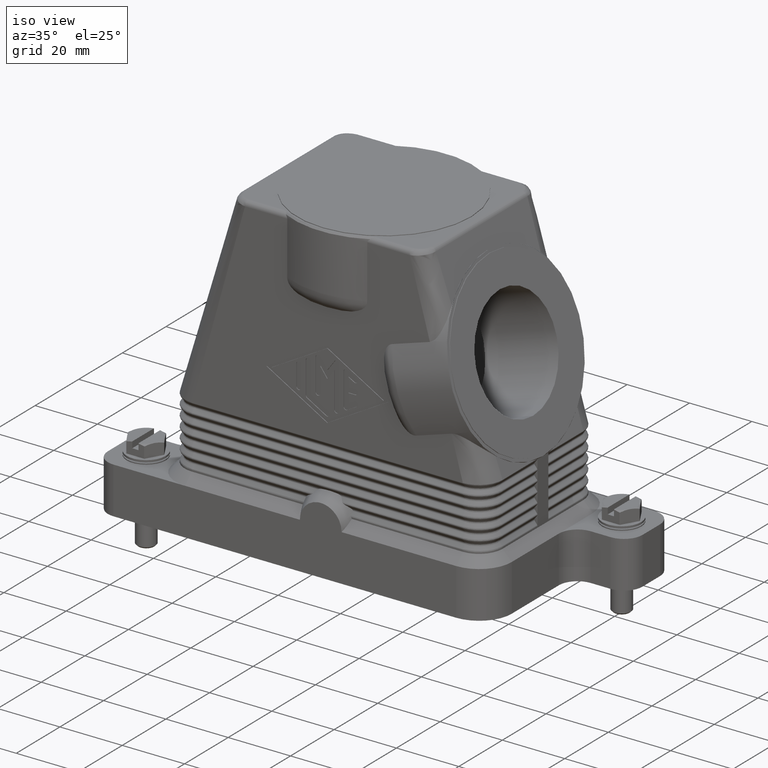
[diagram: clean part render]
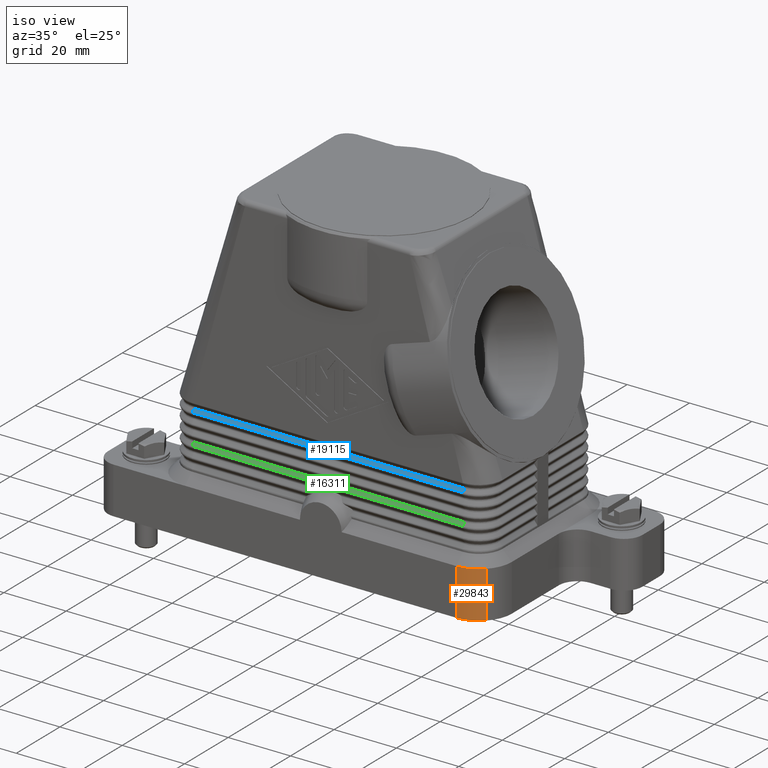
[diagram: same view with three faces highlighted in distinct colors, each labeled with its STEP entity id]
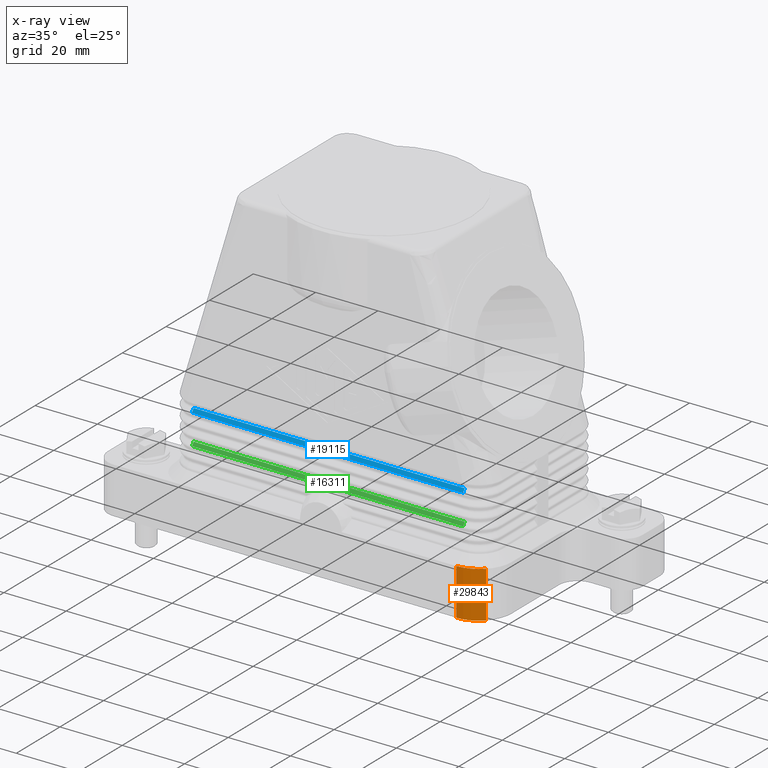
[diagram: x-ray of the same camera — body ghosted, the three highlighted faces saturated]
A machine part, iso view with three faces highlighted in distinct colors.
The next image is the same camera in x-ray (body ghosted, the three faces saturated) — at least one of them is partly hidden behind the body in this view.
Their STEP definitions:

[orange] entity #29843 — the highlighted cylindrical surface (partial cylindrical patch) has radius 10.5 mm, axis along (0, 0, 1).
#3941=CARTESIAN_POINT('',(50.924621202458752,-25.924621202458752,0.0));
#3942=VERTEX_POINT('',#3941);
#3943=CARTESIAN_POINT('',(50.924621202458752,-25.924621202458752,15.0));
#3944=VERTEX_POINT('',#3943);
#3945=CARTESIAN_POINT('',(50.924621202458752,-25.924621202458752,0.0));
#3946=DIRECTION('',(0.0,0.0,1.0));
#3947=VECTOR('',#3946,15.0);
#3948=LINE('',#3945,#3947);
#3949=EDGE_CURVE('',#3942,#3944,#3948,.T.);
#12666=CARTESIAN_POINT('',(43.500000000000000,-29.000000000000004,15.0));
#12667=VERTEX_POINT('',#12666);
#12690=CARTESIAN_POINT('',(43.500000000000000,-29.000000000000004,0.0));
#12691=VERTEX_POINT('',#12690);
#12698=CARTESIAN_POINT('',(43.500000000000000,-29.000000000000004,15.0));
#12699=DIRECTION('',(0.0,0.0,-1.0));
#12700=VECTOR('',#12699,15.0);
#12701=LINE('',#12698,#12700);
#12702=EDGE_CURVE('',#12667,#12691,#12701,.T.);
#29225=CARTESIAN_POINT('',(43.500000000000000,-18.500000000000004,15.0));
#29226=DIRECTION('',(0.0,0.0,-1.000000000000000));
#29227=DIRECTION('',(0.707106781186548,-0.707106781186547,0.0));
#29228=AXIS2_PLACEMENT_3D('',#29225,#29226,#29227);
#29229=CIRCLE('',#29228,10.500000000000000);
#29230=EDGE_CURVE('',#3944,#12667,#29229,.T.);
#29826=CARTESIAN_POINT('',(43.500000000000000,-18.500000000000004,0.0));
#29827=DIRECTION('',(0.0,0.0,1.0));
#29828=DIRECTION('',(0.707106781186548,-0.707106781186547,0.0));
#29829=AXIS2_PLACEMENT_3D('',#29826,#29827,#29828);
#29830=CYLINDRICAL_SURFACE('',#29829,10.500000000000002);
#29831=ORIENTED_EDGE('',*,*,#3949,.T.);
#29832=ORIENTED_EDGE('',*,*,#29230,.T.);
#29833=ORIENTED_EDGE('',*,*,#12702,.T.);
#29834=CARTESIAN_POINT('',(43.500000000000000,-18.500000000000004,0.0));
#29835=DIRECTION('',(0.0,0.0,1.000000000000000));
#29836=DIRECTION('',(0.707106781186548,-0.707106781186547,0.0));
#29837=AXIS2_PLACEMENT_3D('',#29834,#29835,#29836);
#29838=CIRCLE('',#29837,10.500000000000000);
#29839=EDGE_CURVE('',#12691,#3942,#29838,.T.);
#29840=ORIENTED_EDGE('',*,*,#29839,.T.);
#29841=EDGE_LOOP('',(#29831,#29832,#29833,#29840));
#29842=FACE_OUTER_BOUND('',#29841,.T.);
#29843=ADVANCED_FACE('',(#29842),#29830,.T.);

[blue] entity #19115 — the highlighted face is a freeform B-spline surface patch.
#6472=CARTESIAN_POINT('',(43.500000000000000,-25.894113490998450,35.057692307692307));
#6473=VERTEX_POINT('',#6472);
#6481=CARTESIAN_POINT('',(-43.500000000000000,-25.894113490998443,35.057692307692307));
#6482=VERTEX_POINT('',#6481);
#6483=CARTESIAN_POINT('',(43.500000000000000,-25.894113490998450,35.057692307692307));
#6484=DIRECTION('',(-1.0,0.0,0.0));
#6485=VECTOR('',#6484,87.0);
#6486=LINE('',#6483,#6485);
#6487=EDGE_CURVE('',#6473,#6482,#6486,.T.);
#19035=CARTESIAN_POINT('',(-43.500000000000000,-25.105886509001554,36.067307692307693));
#19036=VERTEX_POINT('',#19035);
#19082=CARTESIAN_POINT('',(-43.500000000000000,-25.105886509001554,36.067307692307693));
#19083=DIRECTION('',(0.0,-0.615384615384613,-0.788226981996894));
#19084=VECTOR('',#19083,1.280868845744950);
#19085=LINE('',#19082,#19084);
#19086=EDGE_CURVE('',#19036,#6482,#19085,.T.);
#19092=CARTESIAN_POINT('',(43.500000000000000,-25.894113490998453,35.057692307692307));
#19093=CARTESIAN_POINT('',(-43.500000000000000,-25.894113490998453,35.057692307692292));
#19094=CARTESIAN_POINT('',(43.500000000000000,-25.105886509001554,36.067307692307708));
#19095=CARTESIAN_POINT('',(-43.500000000000000,-25.105886509001554,36.067307692307693));
#19096=B_SPLINE_SURFACE_WITH_KNOTS('',1,1,((#19092,#19094),(#19093,#19095)),.UNSPECIFIED.,.F.,.F.,.U.,(2,2),(2,2),(0.0,87.0),(0.0,1.280868845744967),.UNSPECIFIED.);
#19097=ORIENTED_EDGE('',*,*,#19086,.T.);
#19098=ORIENTED_EDGE('',*,*,#6487,.F.);
#19099=CARTESIAN_POINT('',(43.500000000000000,-25.105886509001564,36.067307692307693));
#19100=VERTEX_POINT('',#19099);
#19101=CARTESIAN_POINT('',(43.500000000000000,-25.105886509001564,36.067307692307693));
#19102=DIRECTION('',(0.0,-0.615384615384611,-0.788226981996895));
#19103=VECTOR('',#19102,1.280868845744947);
#19104=LINE('',#19101,#19103);
#19105=EDGE_CURVE('',#19100,#6473,#19104,.T.);
#19106=ORIENTED_EDGE('',*,*,#19105,.F.);
#19107=CARTESIAN_POINT('',(43.500000000000000,-25.105886509001564,36.067307692307693));
#19108=DIRECTION('',(-1.0,0.0,0.0));
#19109=VECTOR('',#19108,87.0);
#19110=LINE('',#19107,#19109);
#19111=EDGE_CURVE('',#19100,#19036,#19110,.T.);
#19112=ORIENTED_EDGE('',*,*,#19111,.T.);
#19113=EDGE_LOOP('',(#19097,#19098,#19106,#19112));
#19114=FACE_OUTER_BOUND('',#19113,.T.);
#19115=ADVANCED_FACE('',(#19114),#19096,.F.);

[green] entity #16311 — the highlighted face is a freeform B-spline surface patch.
#7015=CARTESIAN_POINT('',(43.500000000000000,-25.894113490998450,25.307692307692303));
#7016=VERTEX_POINT('',#7015);
#7024=CARTESIAN_POINT('',(-43.500000000000000,-25.894113490998443,25.307692307692303));
#7025=VERTEX_POINT('',#7024);
#7026=CARTESIAN_POINT('',(43.500000000000000,-25.894113490998450,25.307692307692303));
#7027=DIRECTION('',(-1.0,0.0,0.0));
#7028=VECTOR('',#7027,87.0);
#7029=LINE('',#7026,#7028);
#7030=EDGE_CURVE('',#7016,#7025,#7029,.T.);
#16231=CARTESIAN_POINT('',(-43.500000000000000,-25.105886509001554,26.317307692307690));
#16232=VERTEX_POINT('',#16231);
#16278=CARTESIAN_POINT('',(-43.500000000000000,-25.105886509001554,26.317307692307690));
#16279=DIRECTION('',(0.0,-0.615384615384613,-0.788226981996894));
#16280=VECTOR('',#16279,1.280868845744950);
#16281=LINE('',#16278,#16280);
#16282=EDGE_CURVE('',#16232,#7025,#16281,.T.);
#16288=CARTESIAN_POINT('',(43.500000000000000,-25.894113490998453,25.307692307692303));
#16289=CARTESIAN_POINT('',(-43.500000000000000,-25.894113490998453,25.307692307692292));
#16290=CARTESIAN_POINT('',(43.500000000000000,-25.105886509001554,26.317307692307704));
#16291=CARTESIAN_POINT('',(-43.500000000000000,-25.105886509001554,26.317307692307697));
#16292=B_SPLINE_SURFACE_WITH_KNOTS('',1,1,((#16288,#16290),(#16289,#16291)),.UNSPECIFIED.,.F.,.F.,.U.,(2,2),(2,2),(0.0,87.0),(0.0,1.280868845744967),.UNSPECIFIED.);
#16293=ORIENTED_EDGE('',*,*,#16282,.T.);
#16294=ORIENTED_EDGE('',*,*,#7030,.F.);
#16295=CARTESIAN_POINT('',(43.500000000000000,-25.105886509001564,26.317307692307690));
#16296=VERTEX_POINT('',#16295);
#16297=CARTESIAN_POINT('',(43.500000000000000,-25.105886509001564,26.317307692307690));
#16298=DIRECTION('',(0.0,-0.615384615384611,-0.788226981996895));
#16299=VECTOR('',#16298,1.280868845744947);
#16300=LINE('',#16297,#16299);
#16301=EDGE_CURVE('',#16296,#7016,#16300,.T.);
#16302=ORIENTED_EDGE('',*,*,#16301,.F.);
#16303=CARTESIAN_POINT('',(43.500000000000000,-25.105886509001564,26.317307692307690));
#16304=DIRECTION('',(-1.0,0.0,0.0));
#16305=VECTOR('',#16304,87.0);
#16306=LINE('',#16303,#16305);
#16307=EDGE_CURVE('',#16296,#16232,#16306,.T.);
#16308=ORIENTED_EDGE('',*,*,#16307,.T.);
#16309=EDGE_LOOP('',(#16293,#16294,#16302,#16308));
#16310=FACE_OUTER_BOUND('',#16309,.T.);
#16311=ADVANCED_FACE('',(#16310),#16292,.F.);